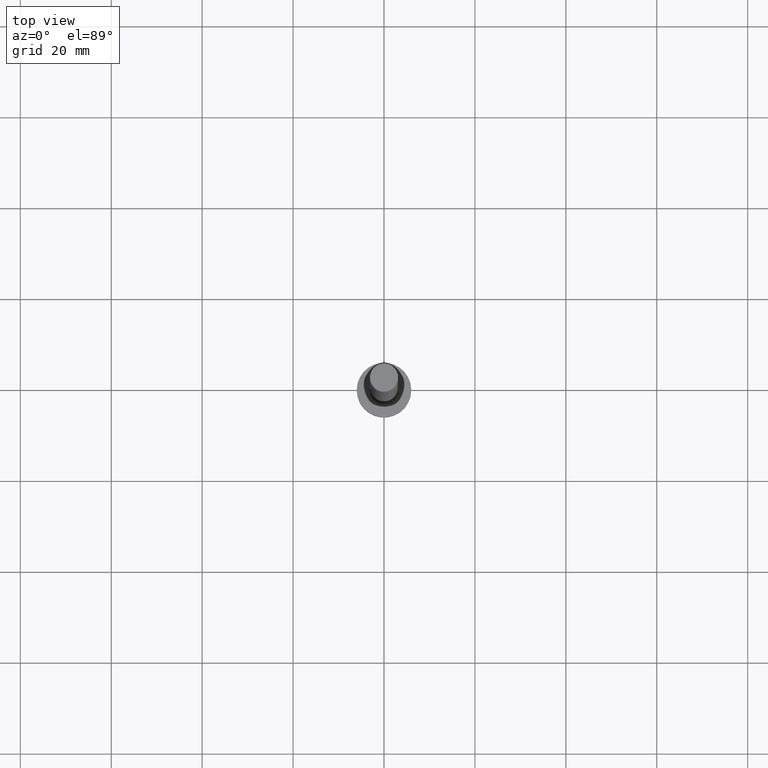
[diagram: clean part render]
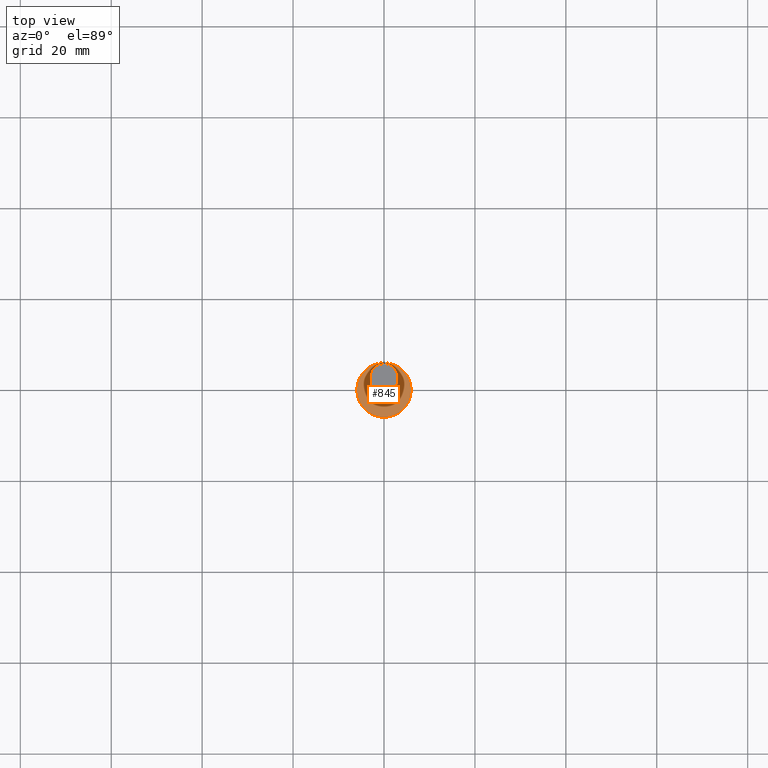
[diagram: same view with one face highlighted and labeled with its STEP entity id]
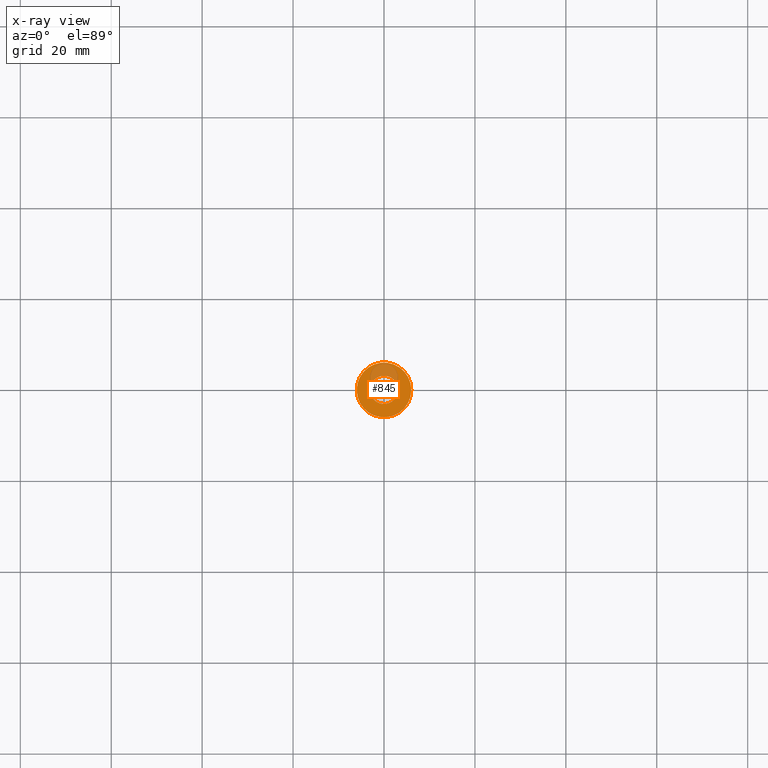
[diagram: x-ray of the same camera — body ghosted, the highlighted face saturated]
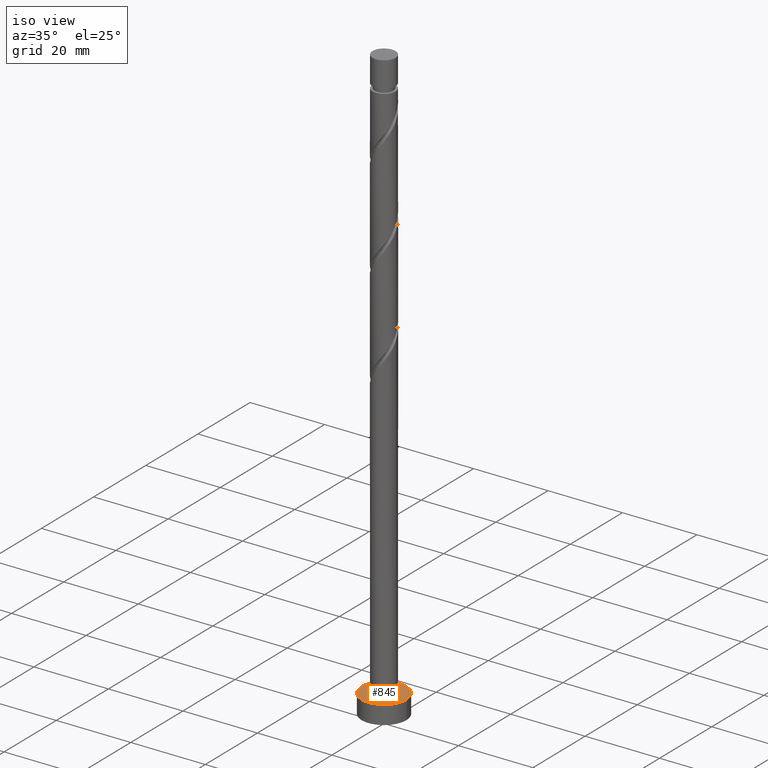
[diagram: same view with one face highlighted and labeled with its STEP entity id]
A machine part, top view. The second image highlights one B-rep face of the part: STEP entity #845.
The next image is the same camera in x-ray: the body ghosted, the highlighted face saturated — about 20% of this face is hidden behind the body in this view.
A second angle (iso view) of the same face is appended — the face is thin or edge-on in the first view.
In plain terms, the highlighted planar face has unit normal (0, 0, 1).
Its self-contained STEP definition (entity closure, byte-faithful):
#18 = VERTEX_POINT ( 'NONE', #42 ) ;
#34 = VERTEX_POINT ( 'NONE', #565 ) ;
#42 = CARTESIAN_POINT ( 'NONE',  ( 6.000000000000000888, 7.347880794884120722E-16, 5.000000000000000000 ) ) ;
#53 = AXIS2_PLACEMENT_3D ( 'NONE', #1223, #1489, #1081 ) ;
#81 = VERTEX_POINT ( 'NONE', #815 ) ;
#93 = DIRECTION ( 'NONE',  ( 1.000000000000000000, 0.000000000000000000, 0.000000000000000000 ) ) ;
#201 = EDGE_LOOP ( 'NONE', ( #1620, #222 ) ) ;
#220 = PLANE ( 'NONE',  #700 ) ;
#222 = ORIENTED_EDGE ( 'NONE', *, *, #1231, .F. ) ;
#257 = DIRECTION ( 'NONE',  ( 1.000000000000000000, 0.000000000000000000, 0.000000000000000000 ) ) ;
#260 = VERTEX_POINT ( 'NONE', #1001 ) ;
#382 = DIRECTION ( 'NONE',  ( 1.000000000000000000, 0.000000000000000000, -0.000000000000000000 ) ) ;
#423 = EDGE_CURVE ( 'NONE', #81, #18, #1400, .T. ) ;
#462 = EDGE_CURVE ( 'NONE', #18, #81, #585, .T. ) ;
#515 = CARTESIAN_POINT ( 'NONE',  ( 0.000000000000000000, 0.000000000000000000, 5.000000000000000000 ) ) ;
#565 = CARTESIAN_POINT ( 'NONE',  ( -3.100000000000000089, 0.000000000000000000, 5.000000000000000000 ) ) ;
#585 = CIRCLE ( 'NONE', #886, 6.000000000000000888 ) ;
#668 = CARTESIAN_POINT ( 'NONE',  ( 0.000000000000000000, 0.000000000000000000, 5.000000000000000000 ) ) ;
#697 = EDGE_CURVE ( 'NONE', #34, #260, #1201, .T. ) ;
#700 = AXIS2_PLACEMENT_3D ( 'NONE', #1274, #742, #382 ) ;
#742 = DIRECTION ( 'NONE',  ( 0.000000000000000000, 0.000000000000000000, 1.000000000000000000 ) ) ;
#815 = CARTESIAN_POINT ( 'NONE',  ( -6.000000000000000888, 0.000000000000000000, 5.000000000000000000 ) ) ;
#845 = ADVANCED_FACE ( 'NONE', ( #1638, #1392 ), #220, .T. ) ;
#858 = ORIENTED_EDGE ( 'NONE', *, *, #462, .T. ) ;
#881 = CARTESIAN_POINT ( 'NONE',  ( 0.000000000000000000, 0.000000000000000000, 5.000000000000000000 ) ) ;
#886 = AXIS2_PLACEMENT_3D ( 'NONE', #668, #1297, #887 ) ;
#887 = DIRECTION ( 'NONE',  ( 1.000000000000000000, 0.000000000000000000, 0.000000000000000000 ) ) ;
#901 = EDGE_LOOP ( 'NONE', ( #1545, #858 ) ) ;
#1001 = CARTESIAN_POINT ( 'NONE',  ( 3.100000000000000089, 3.796405077356794918E-16, 5.000000000000000000 ) ) ;
#1069 = CIRCLE ( 'NONE', #1185, 3.100000000000000089 ) ;
#1081 = DIRECTION ( 'NONE',  ( 1.000000000000000000, 0.000000000000000000, 0.000000000000000000 ) ) ;
#1088 = AXIS2_PLACEMENT_3D ( 'NONE', #515, #1289, #257 ) ;
#1185 = AXIS2_PLACEMENT_3D ( 'NONE', #881, #1504, #93 ) ;
#1201 = CIRCLE ( 'NONE', #53, 3.100000000000000089 ) ;
#1223 = CARTESIAN_POINT ( 'NONE',  ( 0.000000000000000000, 0.000000000000000000, 5.000000000000000000 ) ) ;
#1231 = EDGE_CURVE ( 'NONE', #260, #34, #1069, .T. ) ;
#1274 = CARTESIAN_POINT ( 'NONE',  ( 0.000000000000000000, 0.000000000000000000, 5.000000000000000000 ) ) ;
#1289 = DIRECTION ( 'NONE',  ( 0.000000000000000000, 0.000000000000000000, 1.000000000000000000 ) ) ;
#1297 = DIRECTION ( 'NONE',  ( 0.000000000000000000, 0.000000000000000000, 1.000000000000000000 ) ) ;
#1392 = FACE_OUTER_BOUND ( 'NONE', #901, .T. ) ;
#1400 = CIRCLE ( 'NONE', #1088, 6.000000000000000888 ) ;
#1489 = DIRECTION ( 'NONE',  ( 0.000000000000000000, 0.000000000000000000, 1.000000000000000000 ) ) ;
#1504 = DIRECTION ( 'NONE',  ( 0.000000000000000000, 0.000000000000000000, 1.000000000000000000 ) ) ;
#1545 = ORIENTED_EDGE ( 'NONE', *, *, #423, .T. ) ;
#1620 = ORIENTED_EDGE ( 'NONE', *, *, #697, .F. ) ;
#1638 = FACE_BOUND ( 'NONE', #201, .T. ) ;